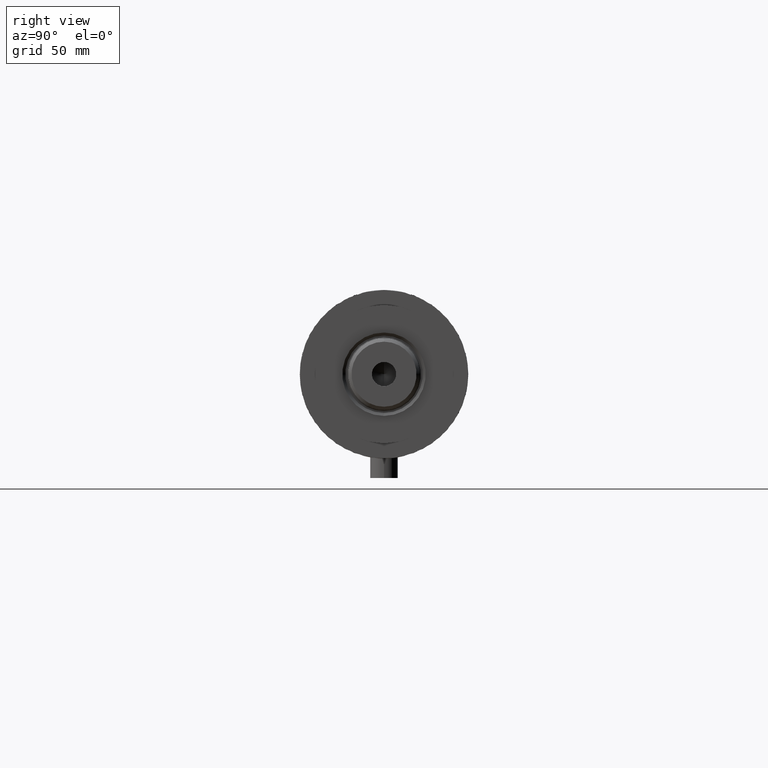
[diagram: clean part render]
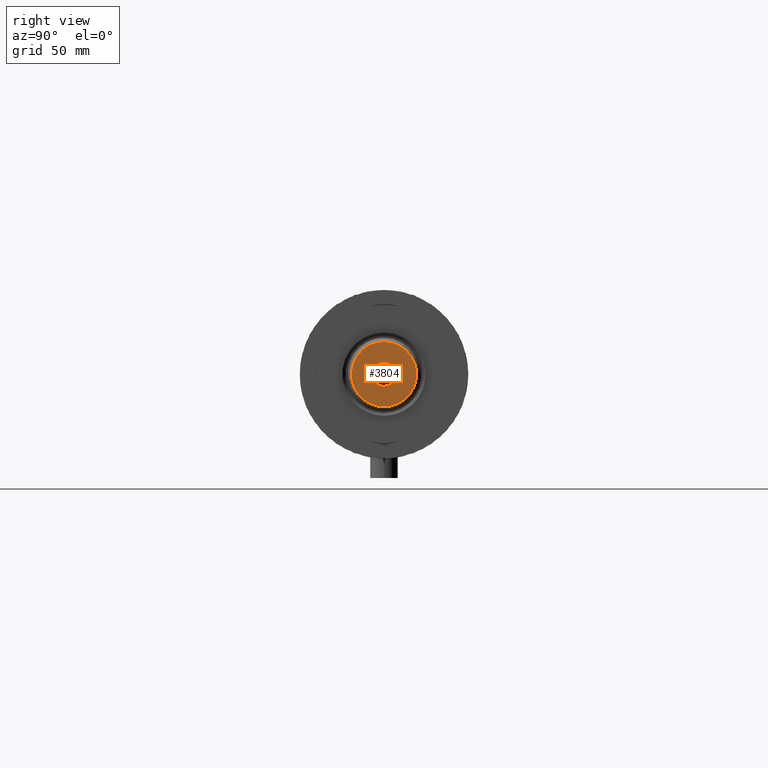
[diagram: same view with one face highlighted and labeled with its STEP entity id]
A machine part, right view. The second image highlights one B-rep face of the part: STEP entity #3804.
In plain terms, the highlighted planar face has unit normal (1, 0, -0).
Its self-contained STEP definition (entity closure, byte-faithful):
#39 = PLANE ( 'NONE',  #2344 ) ;
#96 = EDGE_CURVE ( 'NONE', #1650, #2517, #3843, .T. ) ;
#345 = EDGE_CURVE ( 'NONE', #2517, #1650, #1801, .T. ) ;
#381 = FACE_BOUND ( 'NONE', #3692, .T. ) ;
#434 = ORIENTED_EDGE ( 'NONE', *, *, #96, .F. ) ;
#528 = ORIENTED_EDGE ( 'NONE', *, *, #345, .F. ) ;
#728 = DIRECTION ( 'NONE',  ( -0.000000000000000000, -0.000000000000000000, 1.000000000000000000 ) ) ;
#1185 = EDGE_CURVE ( 'NONE', #2840, #2708, #2259, .T. ) ;
#1284 = CARTESIAN_POINT ( 'NONE',  ( 14.09999999999994635, 1.812477262738079325E-15, 255.0000000000000000 ) ) ;
#1310 = CARTESIAN_POINT ( 'NONE',  ( 0.000000000000000000, 0.000000000000000000, 255.0000000000000000 ) ) ;
#1587 = CARTESIAN_POINT ( 'NONE',  ( 0.000000000000000000, 0.000000000000000000, 255.0000000000000000 ) ) ;
#1650 = VERTEX_POINT ( 'NONE', #2722 ) ;
#1736 = CARTESIAN_POINT ( 'NONE',  ( 0.000000000000000000, 0.000000000000000000, 255.0000000000000000 ) ) ;
#1796 = ORIENTED_EDGE ( 'NONE', *, *, #1185, .T. ) ;
#1801 = CIRCLE ( 'NONE', #3045, 5.249999999999998224 ) ;
#1828 = FACE_OUTER_BOUND ( 'NONE', #3789, .T. ) ;
#1892 = CARTESIAN_POINT ( 'NONE',  ( -14.09999999999994635, 0.000000000000000000, 255.0000000000000000 ) ) ;
#2029 = EDGE_CURVE ( 'NONE', #2708, #2840, #4427, .T. ) ;
#2217 = DIRECTION ( 'NONE',  ( 1.000000000000000000, 0.000000000000000000, 0.000000000000000000 ) ) ;
#2240 = DIRECTION ( 'NONE',  ( -0.000000000000000000, -0.000000000000000000, 1.000000000000000000 ) ) ;
#2259 = CIRCLE ( 'NONE', #4127, 14.09999999999994635 ) ;
#2344 = AXIS2_PLACEMENT_3D ( 'NONE', #1736, #4207, #3125 ) ;
#2398 = CARTESIAN_POINT ( 'NONE',  ( 5.249999999999998224, 0.000000000000000000, 255.0000000000000000 ) ) ;
#2419 = ORIENTED_EDGE ( 'NONE', *, *, #2029, .T. ) ;
#2517 = VERTEX_POINT ( 'NONE', #2398 ) ;
#2689 = DIRECTION ( 'NONE',  ( 1.000000000000000000, 0.000000000000000000, 0.000000000000000000 ) ) ;
#2708 = VERTEX_POINT ( 'NONE', #1892 ) ;
#2722 = CARTESIAN_POINT ( 'NONE',  ( -5.249999999999998224, 6.429395695523602181E-16, 255.0000000000000000 ) ) ;
#2810 = CARTESIAN_POINT ( 'NONE',  ( 0.000000000000000000, 0.000000000000000000, 255.0000000000000000 ) ) ;
#2840 = VERTEX_POINT ( 'NONE', #1284 ) ;
#2964 = AXIS2_PLACEMENT_3D ( 'NONE', #3256, #2240, #2217 ) ;
#2971 = DIRECTION ( 'NONE',  ( 0.000000000000000000, 0.000000000000000000, 1.000000000000000000 ) ) ;
#3045 = AXIS2_PLACEMENT_3D ( 'NONE', #2810, #728, #3175 ) ;
#3125 = DIRECTION ( 'NONE',  ( 1.000000000000000000, 0.000000000000000000, -0.000000000000000000 ) ) ;
#3175 = DIRECTION ( 'NONE',  ( 1.000000000000000000, 0.000000000000000000, 0.000000000000000000 ) ) ;
#3256 = CARTESIAN_POINT ( 'NONE',  ( 0.000000000000000000, 0.000000000000000000, 255.0000000000000000 ) ) ;
#3486 = AXIS2_PLACEMENT_3D ( 'NONE', #1587, #2971, #4357 ) ;
#3692 = EDGE_LOOP ( 'NONE', ( #528, #434 ) ) ;
#3789 = EDGE_LOOP ( 'NONE', ( #2419, #1796 ) ) ;
#3804 = ADVANCED_FACE ( 'NONE', ( #1828, #381 ), #39, .T. ) ;
#3843 = CIRCLE ( 'NONE', #2964, 5.249999999999998224 ) ;
#4112 = DIRECTION ( 'NONE',  ( 0.000000000000000000, 0.000000000000000000, 1.000000000000000000 ) ) ;
#4127 = AXIS2_PLACEMENT_3D ( 'NONE', #1310, #4112, #2689 ) ;
#4207 = DIRECTION ( 'NONE',  ( 0.000000000000000000, 0.000000000000000000, 1.000000000000000000 ) ) ;
#4357 = DIRECTION ( 'NONE',  ( 1.000000000000000000, 0.000000000000000000, 0.000000000000000000 ) ) ;
#4427 = CIRCLE ( 'NONE', #3486, 14.09999999999994635 ) ;